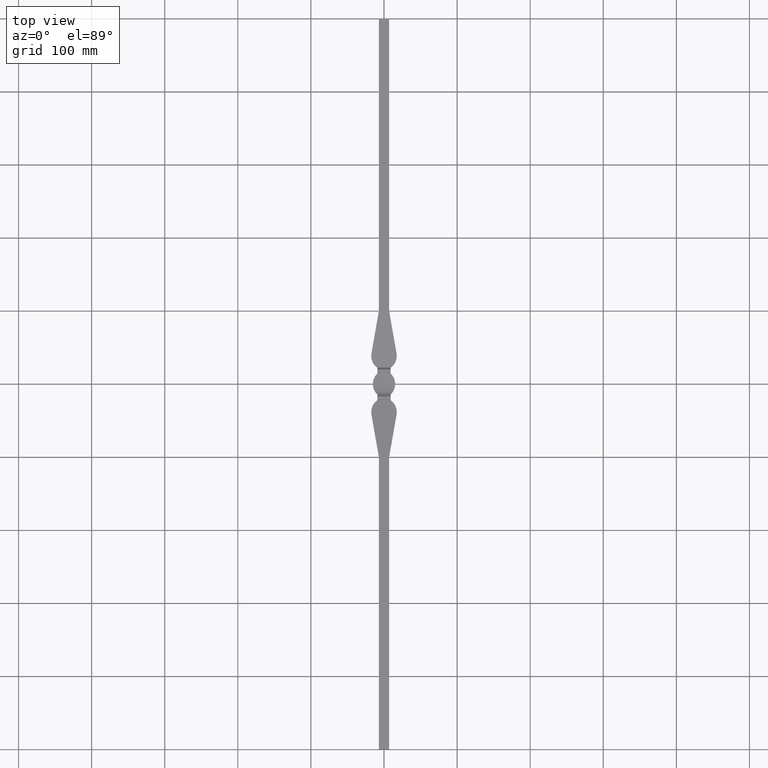
[diagram: clean part render]
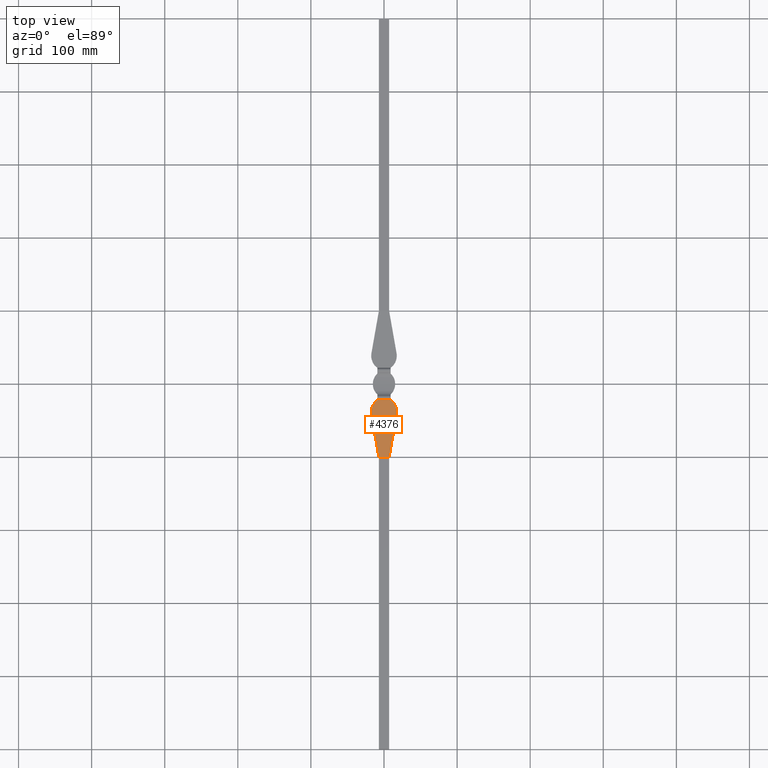
[diagram: same view with one face highlighted and labeled with its STEP entity id]
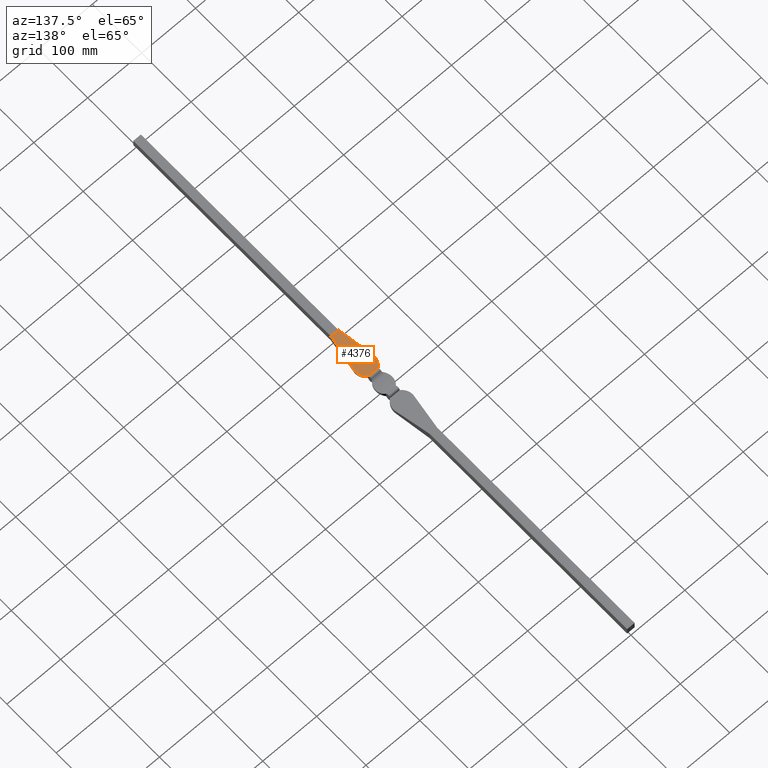
[diagram: same view with one face highlighted and labeled with its STEP entity id]
A machine part, top view. The second image highlights one B-rep face of the part: STEP entity #4376.
A second angle (auxiliary view) of the same face is appended — the face is thin or edge-on in the first view.
In plain terms, the highlighted planar face has unit normal (0, -0.0608, -0.9982).
Its self-contained STEP definition (entity closure, byte-faithful):
#307 = CARTESIAN_POINT ( 'NONE',  ( -17.19423237648115332, -42.00000000000000000, 3.467948717948718507 ) ) ;
#444 = CARTESIAN_POINT ( 'NONE',  ( -7.000000000000000888, -99.99999999999997158, 6.999999999999999112 ) ) ;
#1069 = DIRECTION ( 'NONE',  ( 0.1727985479923806467, -0.9831358962034556503, 0.05987045521751810373 ) ) ;
#1071 = VERTEX_POINT ( 'NONE', #6503 ) ;
#1091 = ORIENTED_EDGE ( 'NONE', *, *, #9066, .T. ) ;
#1419 = CARTESIAN_POINT ( 'NONE',  ( -17.50000000000000355, -22.00000000000000000, 2.250000000000000000 ) ) ;
#2142 = CARTESIAN_POINT ( 'NONE',  ( 15.53985880112379725, -26.66008408080875469, 2.533787171587712717 ) ) ;
#2245 = CARTESIAN_POINT ( 'NONE',  ( 0.000000000000000000, -100.0000000000000000, 7.000000000000000000 ) ) ;
#2583 = EDGE_CURVE ( 'NONE', #7413, #9225, #10261, .T. ) ;
#2617 = EDGE_LOOP ( 'NONE', ( #9372, #1091, #4159, #2868, #4313, #7442 ) ) ;
#2618 = CARTESIAN_POINT ( 'NONE',  ( 17.19423237648115332, -42.00000000000000000, 3.467948717948718507 ) ) ;
#2643 = VECTOR ( 'NONE', #7067, 1000.000000000000114 ) ;
#2868 = ORIENTED_EDGE ( 'NONE', *, *, #3567, .F. ) ;
#3195 = EDGE_CURVE ( 'NONE', #1071, #4626, #6961, .T. ) ;
#3567 = EDGE_CURVE ( 'NONE', #11724, #7413, #7532, .T. ) ;
#3597 = CARTESIAN_POINT ( 'NONE',  ( -17.19423237648115332, -42.00000000000000000, 3.467948717948718507 ) ) ;
#4159 = ORIENTED_EDGE ( 'NONE', *, *, #2583, .F. ) ;
#4313 = ORIENTED_EDGE ( 'NONE', *, *, #8359, .F. ) ;
#4323 = DIRECTION ( 'NONE',  ( 0.000000000000000000, -0.9981508926219234690, 0.06078482999941198228 ) ) ;
#4376 = ADVANCED_FACE ( 'NONE', ( #9023 ), #10509, .F. ) ;
#4626 = VERTEX_POINT ( 'NONE', #6149 ) ;
#4905 = CARTESIAN_POINT ( 'NONE',  ( 18.58435472468469740, -34.09091050525607614, 2.986305447435466665 ) ) ;
#4947 = CARTESIAN_POINT ( 'NONE',  ( 9.000000000000000000, -22.00000000000000000, 2.249999999999999556 ) ) ;
#5260 = DIRECTION ( 'NONE',  ( 0.000000000000000000, -0.06078482999941198228, -0.9981508926219234690 ) ) ;
#5835 = AXIS2_PLACEMENT_3D ( 'NONE', #11708, #5260, #4323 ) ;
#6149 = CARTESIAN_POINT ( 'NONE',  ( 9.000000000000000000, -22.00000000000000000, 2.249999999999999556 ) ) ;
#6297 = VERTEX_POINT ( 'NONE', #3597 ) ;
#6477 =( BOUNDED_CURVE ( )  B_SPLINE_CURVE ( 3, ( #10513, #6769, #9576, #307 ),
 .UNSPECIFIED., .F., .T. ) 
 B_SPLINE_CURVE_WITH_KNOTS ( ( 4, 4 ),
 ( 0.6191101395289017040, 1.744781863033761926 ),
 .UNSPECIFIED. ) 
 CURVE ( )  GEOMETRIC_REPRESENTATION_ITEM ( )  RATIONAL_B_SPLINE_CURVE ( ( 1.000000000000000000, 0.8971635570349776323, 0.8971635570349776323, 1.000000000000000000 ) ) 
 REPRESENTATION_ITEM ( '' )  );
#6503 = CARTESIAN_POINT ( 'NONE',  ( -9.000000000000000000, -22.00000000000000000, 2.250000000000000444 ) ) ;
#6769 = CARTESIAN_POINT ( 'NONE',  ( -15.53985880112379725, -26.66008408080875469, 2.533787171587712717 ) ) ;
#6961 = LINE ( 'NONE', #1419, #9127 ) ;
#7067 = DIRECTION ( 'NONE',  ( -0.1727985479923806467, -0.9831358962034556503, 0.05987045521751810373 ) ) ;
#7235 = CARTESIAN_POINT ( 'NONE',  ( 7.000000000000000888, -100.0000000000000284, 6.999999999999999112 ) ) ;
#7413 = VERTEX_POINT ( 'NONE', #7235 ) ;
#7442 = ORIENTED_EDGE ( 'NONE', *, *, #3195, .F. ) ;
#7532 = LINE ( 'NONE', #9889, #2643 ) ;
#7813 = VECTOR ( 'NONE', #8692, 1000.000000000000000 ) ;
#8359 = EDGE_CURVE ( 'NONE', #4626, #11724, #9362, .T. ) ;
#8506 = LINE ( 'NONE', #10174, #11823 ) ;
#8595 = CARTESIAN_POINT ( 'NONE',  ( 17.19423237648115332, -42.00000000000000000, 3.467948717948718507 ) ) ;
#8692 = DIRECTION ( 'NONE',  ( -1.000000000000000000, 0.000000000000000000, 0.000000000000000000 ) ) ;
#8913 = DIRECTION ( 'NONE',  ( 1.000000000000000000, 0.000000000000000000, 0.000000000000000000 ) ) ;
#9023 = FACE_OUTER_BOUND ( 'NONE', #2617, .T. ) ;
#9066 = EDGE_CURVE ( 'NONE', #6297, #9225, #8506, .T. ) ;
#9127 = VECTOR ( 'NONE', #8913, 1000.000000000000000 ) ;
#9225 = VERTEX_POINT ( 'NONE', #444 ) ;
#9362 =( BOUNDED_CURVE ( )  B_SPLINE_CURVE ( 3, ( #4947, #2142, #4905, #8595 ),
 .UNSPECIFIED., .F., .F. ) 
 B_SPLINE_CURVE_WITH_KNOTS ( ( 4, 4 ),
 ( 0.6191101395289017040, 1.744781863033761926 ),
 .UNSPECIFIED. ) 
 CURVE ( )  GEOMETRIC_REPRESENTATION_ITEM ( )  RATIONAL_B_SPLINE_CURVE ( ( 1.000000000000000000, 0.8971635570349776323, 0.8971635570349776323, 1.000000000000000000 ) ) 
 REPRESENTATION_ITEM ( '' )  );
#9372 = ORIENTED_EDGE ( 'NONE', *, *, #10993, .T. ) ;
#9576 = CARTESIAN_POINT ( 'NONE',  ( -18.58435472468469740, -34.09091050525607614, 2.986305447435466665 ) ) ;
#9889 = CARTESIAN_POINT ( 'NONE',  ( 7.000000000000000888, -100.0000000000000000, 6.999999999999999112 ) ) ;
#10174 = CARTESIAN_POINT ( 'NONE',  ( -7.000000000000000888, -100.0000000000000000, 6.999999999999999112 ) ) ;
#10261 = LINE ( 'NONE', #2245, #7813 ) ;
#10509 = PLANE ( 'NONE',  #5835 ) ;
#10513 = CARTESIAN_POINT ( 'NONE',  ( -9.000000000000000000, -22.00000000000000000, 2.250000000000000444 ) ) ;
#10993 = EDGE_CURVE ( 'NONE', #1071, #6297, #6477, .T. ) ;
#11708 = CARTESIAN_POINT ( 'NONE',  ( -17.50000000000000355, -100.0000000000000000, 6.999999999999999112 ) ) ;
#11724 = VERTEX_POINT ( 'NONE', #2618 ) ;
#11823 = VECTOR ( 'NONE', #1069, 1000.000000000000114 ) ;